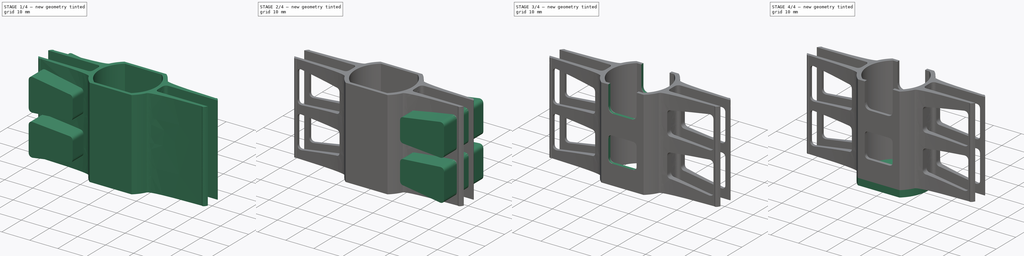
[diagram: build sequence overview — one tinted view per stage of 4, left to right]
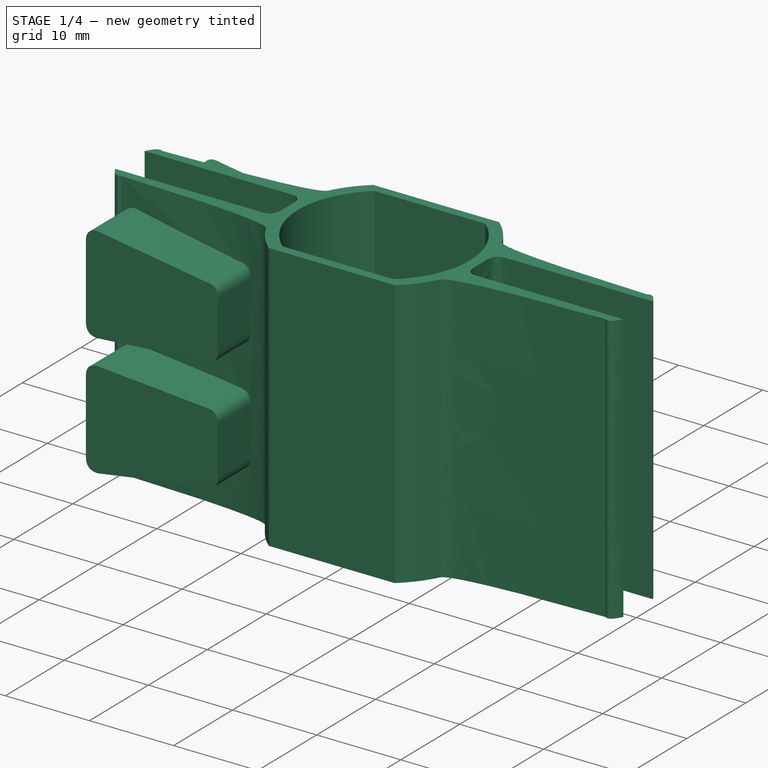
[diagram: stage 1 of 4 — iso view after this stage's code; geometry added in this stage tinted green]
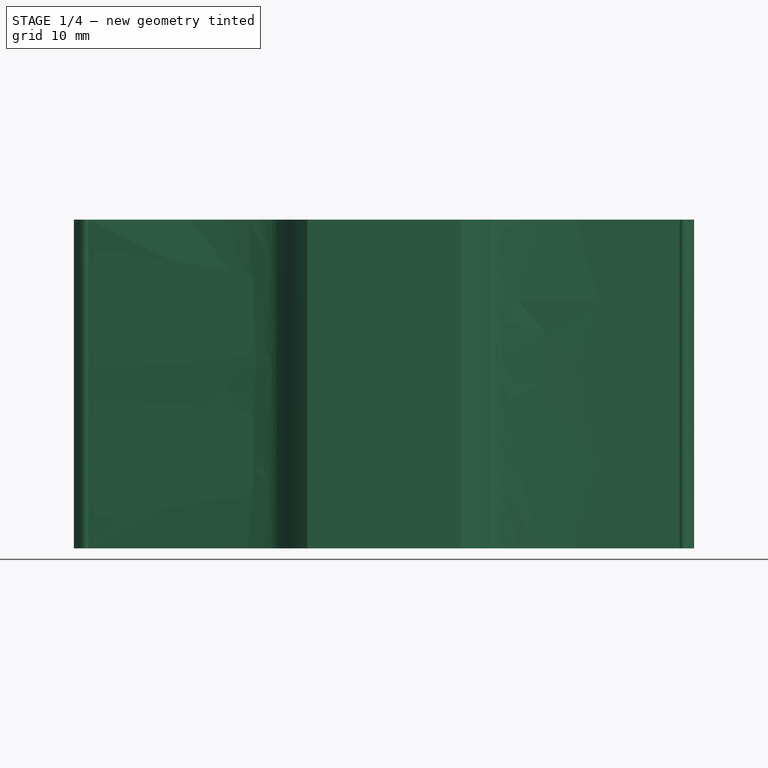
[diagram: stage 1 of 4 — front view after this stage's code; geometry added in this stage tinted green]
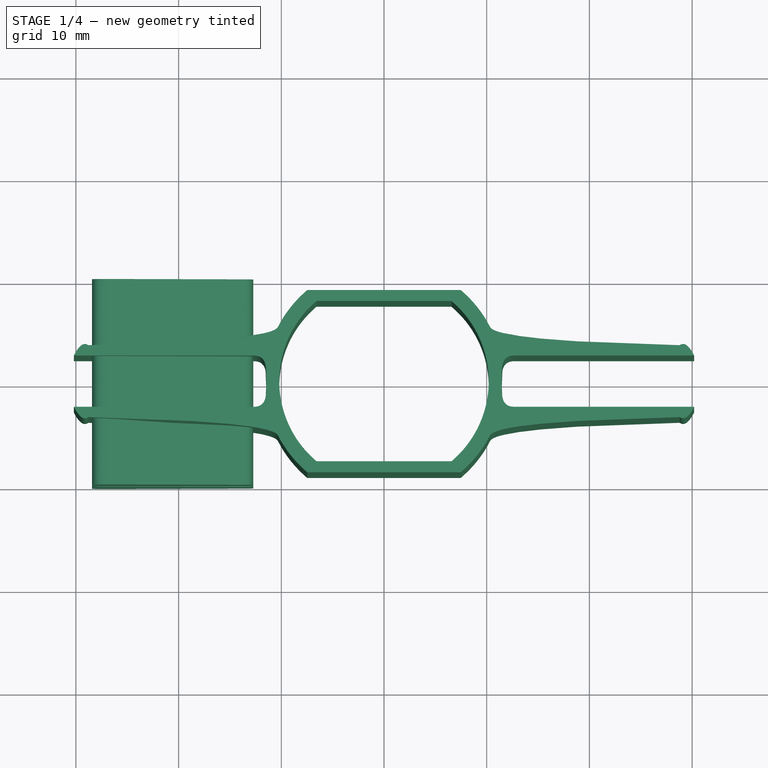
[diagram: stage 1 of 4 — top view after this stage's code; geometry added in this stage tinted green]
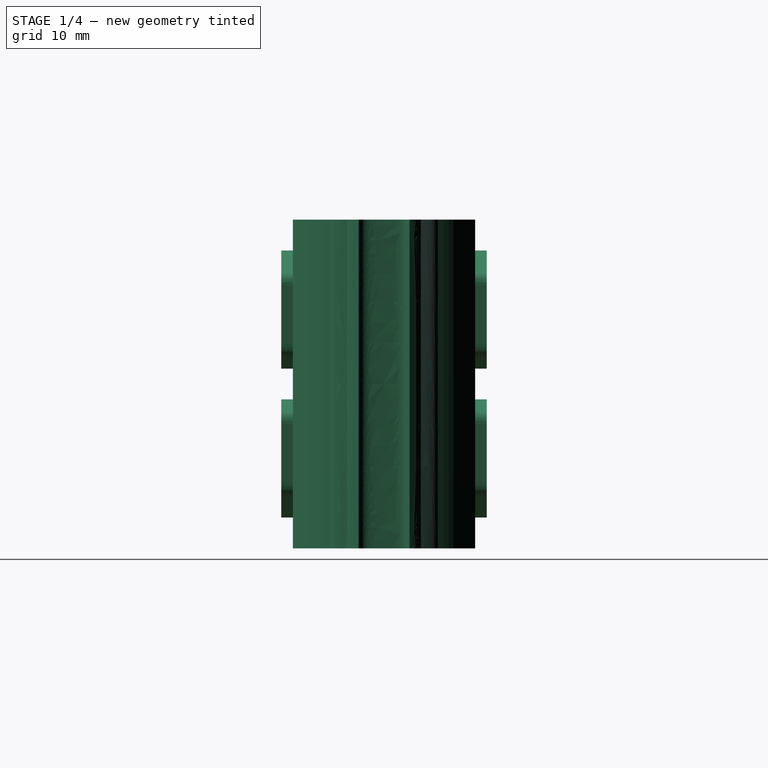
[diagram: stage 1 of 4 — right view after this stage's code; geometry added in this stage tinted green]
FCSTD DOCUMENT  (FreeCAD 0.19R0.19.2)
Label: 031
License: All rights reserved
LicenseURL: http://en.wikipedia.org/wiki/All_rights_reserved
objects: Sketcher::SketchObject×5, Part::Extrusion×5, Part::Cut×3, Part::MultiFuse×1
note: 14 computed .brp shape members not serialized (recipe doc carries the construction recipe); baked Part::Feature solids carry a one-line shape summary decoded from their .brp

FEATURE [Sketcher::SketchObject] Sketch  label="main001"
  FullyConstrained = true
  sketch-geometry (80):
    g0: ArcOfCircle CenterX=-3.45031e-07 CenterY=0 CenterZ=0 NormalX=0 NormalY=0 NormalZ=1 AngleXU=0 Radius=10.2 StartAngle=5.4126 EndAngle=7.15377
    g1: ArcOfCircle CenterX=-3.45031e-07 CenterY=0 CenterZ=0 NormalX=0 NormalY=0 NormalZ=1 AngleXU=0 Radius=10.2 StartAngle=2.27101 EndAngle=4.01218
    g2: LineSegment StartX=-6.57267 StartY=7.8 StartZ=0 EndX=6.57267 EndY=7.8 EndZ=0
    g3: LineSegment StartX=-6.57267 StartY=-7.8 StartZ=0 EndX=6.57267 EndY=-7.8 EndZ=0
    g4: ArcOfCircle CenterX=-3.45031e-07 CenterY=0 CenterZ=0 NormalX=0 NormalY=0 NormalZ=1 AngleXU=0 Radius=11.6 StartAngle=2.27101 EndAngle=2.66709
    g5: ArcOfCircle CenterX=-3.45031e-07 CenterY=0 CenterZ=0 NormalX=0 NormalY=0 NormalZ=1 AngleXU=0 Radius=11.6 StartAngle=5.4126 EndAngle=5.80868
    g6: LineSegment StartX=-7.4748 StartY=8.87059 StartZ=0 EndX=7.4748 EndY=8.87059 EndZ=0
    g7: LineSegment StartX=-7.4748 StartY=-8.87059 StartZ=0 EndX=7.4748 EndY=-8.87059 EndZ=0
    g8: ArcOfCircle CenterX=-3.45031e-07 CenterY=0 CenterZ=0 NormalX=0 NormalY=0 NormalZ=1 AngleXU=0 Radius=11.6 StartAngle=3.6161 EndAngle=4.01218
    g9: ArcOfCircle CenterX=-3.45031e-07 CenterY=0 CenterZ=0 NormalX=0 NormalY=0 NormalZ=1 AngleXU=0 Radius=11.6 StartAngle=0.474503 EndAngle=0.870585
    g10: Circle CenterX=-28.8 CenterY=3.5 CenterZ=0 NormalX=0 NormalY=0 NormalZ=1 AngleXU=0 Radius=1
    g11: Circle CenterX=-10.9247 CenterY=3.9 CenterZ=0 NormalX=0 NormalY=0 NormalZ=1 AngleXU=0 Radius=1
    g12: Circle CenterX=-10.3184 CenterY=5.3 CenterZ=0 NormalX=0 NormalY=0 NormalZ=1 AngleXU=0 Radius=1
    g13: BSplineCurve PolesCount=3 KnotsCount=2 Degree=2 IsPeriodic=0
    g14: GeomPoint X=-28.8 Y=3.5 Z=0
    g15: GeomPoint X=-10.3184 Y=5.3 Z=0
    g16: Circle CenterX=28.8 CenterY=3.5 CenterZ=0 NormalX=0 NormalY=0 NormalZ=1 AngleXU=0 Radius=1
    g17: Circle CenterX=10.9247 CenterY=3.9 CenterZ=0 NormalX=0 NormalY=0 NormalZ=1 AngleXU=0 Radius=1
    g18: Circle CenterX=10.3184 CenterY=5.3 CenterZ=0 NormalX=0 NormalY=0 NormalZ=1 AngleXU=0 Radius=1
    g19: BSplineCurve PolesCount=3 KnotsCount=2 Degree=2 IsPeriodic=0
    g20: GeomPoint X=28.8 Y=3.5 Z=0
    g21: GeomPoint X=10.3184 Y=5.3 Z=0
    g22: Circle CenterX=-28.8 CenterY=-3.5 CenterZ=0 NormalX=0 NormalY=0 NormalZ=1 AngleXU=0 Radius=1
    g23: Circle CenterX=-10.9247 CenterY=-3.9 CenterZ=0 NormalX=0 NormalY=0 NormalZ=1 AngleXU=0 Radius=1
    g24: Circle CenterX=-10.3184 CenterY=-5.3 CenterZ=0 NormalX=0 NormalY=0 NormalZ=1 AngleXU=0 Radius=1
    g25: BSplineCurve PolesCount=3 KnotsCount=2 Degree=2 IsPeriodic=0
    g26: GeomPoint X=-28.8 Y=-3.5 Z=0
    g27: GeomPoint X=-10.3184 Y=-5.3 Z=0
    g28: Circle CenterX=28.8 CenterY=-3.5 CenterZ=0 NormalX=0 NormalY=0 NormalZ=1 AngleXU=0 Radius=1
    g29: Circle CenterX=10.9247 CenterY=-3.9 CenterZ=0 NormalX=0 NormalY=0 NormalZ=1 AngleXU=0 Radius=1
    g30: Circle CenterX=10.3184 CenterY=-5.3 CenterZ=0 NormalX=0 NormalY=0 NormalZ=1 AngleXU=0 Radius=1
    g31: BSplineCurve PolesCount=3 KnotsCount=2 Degree=2 IsPeriodic=0
    g32: GeomPoint X=28.8 Y=-3.5 Z=0
    g33: GeomPoint X=10.3184 Y=-5.3 Z=0
    g34-g38: Circle x5 (B-spline internal-alignment scaffolding for g39; pole/knot coordinates omitted)
    g39: BSplineCurve PolesCount=5 KnotsCount=3 Degree=3 IsPeriodic=0
    g40: GeomPoint X=12.7274 Y=2.5 Z=0
    g41: GeomPoint X=11.4637 Y=2.49999e-07 Z=0
    g42: GeomPoint X=12.7274 Y=-2.5 Z=0
    g43-g47: Circle x5 (B-spline internal-alignment scaffolding for g48; pole/knot coordinates omitted)
    g48: BSplineCurve PolesCount=5 KnotsCount=3 Degree=3 IsPeriodic=0
    g49: GeomPoint X=-12.7274 Y=2.5 Z=0
    g50: GeomPoint X=-11.4637 Y=2.50004e-07 Z=0
    g51: GeomPoint X=-12.7274 Y=-2.5 Z=0
    g52: LineSegment StartX=-30.2 StartY=-2.5 StartZ=0 EndX=-12.7274 EndY=-2.5 EndZ=0
    g53: LineSegment StartX=-30.2 StartY=2.5 StartZ=0 EndX=-12.7274 EndY=2.5 EndZ=0
    g54: LineSegment StartX=30.2 StartY=2.5 StartZ=0 EndX=12.7274 EndY=2.5 EndZ=0
    g55: LineSegment StartX=30.2 StartY=-2.5 StartZ=0 EndX=12.7274 EndY=-2.5 EndZ=0
    g56: Circle CenterX=-30.2 CenterY=2.5 CenterZ=0 NormalX=0 NormalY=0 NormalZ=1 AngleXU=0 Radius=1
    g57: Circle CenterX=-29.4304 CenterY=3.99253 CenterZ=0 NormalX=0 NormalY=0 NormalZ=1 AngleXU=0 Radius=1
    g58: Circle CenterX=-28.8 CenterY=3.5 CenterZ=0 NormalX=0 NormalY=0 NormalZ=1 AngleXU=0 Radius=1
    g59: BSplineCurve PolesCount=3 KnotsCount=2 Degree=2 IsPeriodic=0
    g60: GeomPoint X=-30.2 Y=2.5 Z=0
    g61: GeomPoint X=-28.8 Y=3.5 Z=0
    g62: Circle CenterX=30.2 CenterY=-2.5 CenterZ=0 NormalX=0 NormalY=0 NormalZ=1 AngleXU=0 Radius=1
    g63: Circle CenterX=29.4304 CenterY=-3.99253 CenterZ=0 NormalX=0 NormalY=0 NormalZ=1 AngleXU=0 Radius=1
    g64: Circle CenterX=28.8 CenterY=-3.5 CenterZ=0 NormalX=0 NormalY=0 NormalZ=1 AngleXU=0 Radius=1
    g65: BSplineCurve PolesCount=3 KnotsCount=2 Degree=2 IsPeriodic=0
    g66: GeomPoint X=30.2 Y=-2.5 Z=0
    g67: GeomPoint X=28.8 Y=-3.5 Z=0
    g68: Circle CenterX=30.2 CenterY=2.5 CenterZ=0 NormalX=0 NormalY=0 NormalZ=1 AngleXU=0 Radius=1
    g69: Circle CenterX=29.4304 CenterY=3.99253 CenterZ=0 NormalX=0 NormalY=0 NormalZ=1 AngleXU=0 Radius=1
    g70: Circle CenterX=28.8 CenterY=3.5 CenterZ=0 NormalX=0 NormalY=0 NormalZ=1 AngleXU=0 Radius=1
    g71: BSplineCurve PolesCount=3 KnotsCount=2 Degree=2 IsPeriodic=0
    g72: GeomPoint X=30.2 Y=2.5 Z=0
    g73: GeomPoint X=28.8 Y=3.5 Z=0
    g74: Circle CenterX=-30.2 CenterY=-2.5 CenterZ=0 NormalX=0 NormalY=0 NormalZ=1 AngleXU=0 Radius=1
    g75: Circle CenterX=-29.4304 CenterY=-3.99253 CenterZ=0 NormalX=0 NormalY=0 NormalZ=1 AngleXU=0 Radius=1
    g76: Circle CenterX=-28.8 CenterY=-3.5 CenterZ=0 NormalX=0 NormalY=0 NormalZ=1 AngleXU=0 Radius=1
    g77: BSplineCurve PolesCount=3 KnotsCount=2 Degree=2 IsPeriodic=0
    g78: GeomPoint X=-30.2 Y=-2.5 Z=0
    g79: GeomPoint X=-28.8 Y=-3.5 Z=0
  constraints (131):
    c: Block(g0)
    c: Equal(g0,g1)
    c: Coincident(g0,g1)
    c: Coincident(g2,g1)
    c: Coincident(g2,g0)
    c: Horizontal(g2)
    c: Coincident(g3,g1)
    c: Coincident(g3,g0)
    c: Horizontal(g3)
    c: Block(g2)
    c: Block(g3)
    c: Coincident(g4,g0)
    c: Coincident(g5,g0)
    c: Block(g5)
    c: Block(g4)
    c: Coincident(g6,g4)
    c: Coincident(g6,g9)
    c: Horizontal(g6)
    c: Coincident(g7,g8)
    c: Coincident(g7,g5)
    c: Horizontal(g7)
    c: Equal(g4,g8)
    c: Coincident(g4,g8)
    c: Equal(g5,g9)
    c: Coincident(g5,g9)
    c: Block(g8)
    c: Block(g9)
    c: Weight(g10) = 1
    c: Equal(g10,g11)
    c: Equal(g10,g12)
    c: Coincident(g13,g4)
    c: InternalAlignment(g10,g13)
    c: InternalAlignment(g11,g13)
    c: InternalAlignment(g12,g13)
    c: InternalAlignment(g14,g13)
    c: InternalAlignment(g15,g13)
    c: Weight(g16) = 1
    c: Equal(g16,g17)
    c: Equal(g16,g18)
    c: Coincident(g19,g9)
    c: InternalAlignment(g16,g19)
    c: InternalAlignment(g17,g19)
    c: InternalAlignment(g18,g19)
    c: InternalAlignment(g20,g19)
    c: InternalAlignment(g21,g19)
    c: Weight(g22) = 1
    c: Equal(g22,g23)
    c: Equal(g22,g24)
    c: Coincident(g25,g8)
    c: InternalAlignment(g22,g25)
    c: InternalAlignment(g23,g25)
    c: InternalAlignment(g24,g25)
    c: InternalAlignment(g26,g25)
    c: InternalAlignment(g27,g25)
    c: Weight(g28) = 1
    c: Equal(g28,g29)
    c: Equal(g28,g30)
    c: Coincident(g31,g5)
    c: InternalAlignment(g28,g31)
    c: InternalAlignment(g29,g31)
    c: InternalAlignment(g30,g31)
    c: InternalAlignment(g32,g31)
    c: InternalAlignment(g33,g31)
    c: Block(g19)
    c: Block(g13)
    c: Block(g31)
    c: Block(g25)
    c: Weight(g34) = 1
    c: Equal(g34, g35-g38) x4
    c: InternalAlignment(g34-g38 -> g39) x5
    c: InternalAlignment(g40,g39)
    c: InternalAlignment(g41,g39)
    c: InternalAlignment(g42,g39)
    c: Weight(g43) = 1
    c: Equal(g43,g44)
    c: Equal(g43,g45)
    c: Equal(g43,g46)
    c: InternalAlignment(g43-g47 -> g48) x5
    c: InternalAlignment(g49,g48)
    c: InternalAlignment(g50,g48)
    c: InternalAlignment(g51,g48)
    c: Block(g48)
    c: Block(g39)
    c: Coincident(g52,g48)
    c: Tangent(g52,g22)
    c: Coincident(g53,g48)
    c: Tangent(g53,g10)
    c: Coincident(g54,g39)
    c: Tangent(g54,g16)
    c: Coincident(g55,g39)
    c: Tangent(g55,g28)
    c: Weight(g56) = 1
    c: Equal(g56,g57)
    c: Equal(g56,g58)
    c: InternalAlignment(g56,g59)
    c: InternalAlignment(g57,g59)
    c: InternalAlignment(g58,g59)
    c: InternalAlignment(g60,g59)
    c: InternalAlignment(g61,g59)
    c: Weight(g62) = 1
    c: Equal(g62,g63)
    c: Equal(g62,g64)
    c: InternalAlignment(g62,g65)
    c: InternalAlignment(g63,g65)
    c: InternalAlignment(g64,g65)
    c: InternalAlignment(g66,g65)
    c: InternalAlignment(g67,g65)
    c: Weight(g68) = 1
    c: Equal(g68,g69)
    c: Equal(g68,g70)
    c: InternalAlignment(g68,g71)
    c: InternalAlignment(g69,g71)
    c: InternalAlignment(g70,g71)
    c: InternalAlignment(g72,g71)
    c: InternalAlignment(g73,g71)
    c: Block(g71)
    c: Block(g54)
    c: Block(g65)
    c: Block(g55)
    c: Weight(g74) = 1
    c: Equal(g74,g75)
    c: Equal(g74,g76)
    c: InternalAlignment(g74,g77)
    c: InternalAlignment(g75,g77)
    c: InternalAlignment(g76,g77)
    c: InternalAlignment(g78,g77)
    c: InternalAlignment(g79,g77)
    c: Block(g77)
    c: Block(g52)
    c: Block(g59)
    c: Block(g53)
FEATURE [Part::Extrusion] Extrude  label="main"
  Base = -> Sketch
  Dir = (0,0,1)
  DirMode = 2
  FaceMakerClass = Part::FaceMakerBullseye
  LengthFwd = 32
  LengthRev = 0
  Solid = true
  Symmetric = false
FEATURE [Sketcher::SketchObject] Sketch002  label="structuralHoles"
  FullyConstrained = true
  Placement = pos=(0,0,0) rot=(-1,0,0;4.71239rad)
  sketch-geometry (55):
    g0: LineSegment StartX=-28.43 StartY=13.1 StartZ=0 EndX=-28.43 EndY=4.4 EndZ=0
    g1: LineSegment StartX=-28.43 StartY=27.6 StartZ=0 EndX=-28.43 EndY=18.9 EndZ=0
    g2: LineSegment StartX=-12.73 StartY=25.6 StartZ=0 EndX=-12.73 EndY=19.9 EndZ=0
    g3: LineSegment StartX=-12.73 StartY=12.1 StartZ=0 EndX=-12.73 EndY=6.4 EndZ=0
    g4: Circle CenterX=-28.43 CenterY=27.6 CenterZ=0 NormalX=0 NormalY=0 NormalZ=1 AngleXU=0 Radius=1
    g5: Circle CenterX=-28.43 CenterY=29 CenterZ=0 NormalX=0 NormalY=0 NormalZ=1 AngleXU=0 Radius=1
    g6: Circle CenterX=-27.03 CenterY=29 CenterZ=0 NormalX=0 NormalY=0 NormalZ=1 AngleXU=0 Radius=1
    g7: BSplineCurve PolesCount=3 KnotsCount=2 Degree=2 IsPeriodic=0
    g8: GeomPoint X=-28.43 Y=27.6 Z=0
    g9: GeomPoint X=-27.03 Y=29 Z=0
    g10: Circle CenterX=-14.13 CenterY=27 CenterZ=0 NormalX=0 NormalY=0 NormalZ=1 AngleXU=0 Radius=1
    g11: Circle CenterX=-12.73 CenterY=27 CenterZ=0 NormalX=0 NormalY=0 NormalZ=1 AngleXU=0 Radius=1
    g12: Circle CenterX=-12.73 CenterY=25.6 CenterZ=0 NormalX=0 NormalY=0 NormalZ=1 AngleXU=0 Radius=1
    g13: BSplineCurve PolesCount=3 KnotsCount=2 Degree=2 IsPeriodic=0
    g14: GeomPoint X=-14.13 Y=27 Z=0
    g15: GeomPoint X=-12.73 Y=25.6 Z=0
    g16: Circle CenterX=-14.13 CenterY=18.5 CenterZ=0 NormalX=0 NormalY=0 NormalZ=1 AngleXU=0 Radius=1
    g17: Circle CenterX=-12.73 CenterY=18.5 CenterZ=0 NormalX=0 NormalY=0 NormalZ=1 AngleXU=0 Radius=1
    g18: Circle CenterX=-12.73 CenterY=19.9 CenterZ=0 NormalX=0 NormalY=0 NormalZ=1 AngleXU=0 Radius=1
    g19: BSplineCurve PolesCount=3 KnotsCount=2 Degree=2 IsPeriodic=0
    g20: GeomPoint X=-14.13 Y=18.5 Z=0
    g21: GeomPoint X=-12.73 Y=19.9 Z=0
    g22: Circle CenterX=-27.03 CenterY=17.5 CenterZ=0 NormalX=0 NormalY=0 NormalZ=1 AngleXU=0 Radius=1
    g23: Circle CenterX=-28.43 CenterY=17.5 CenterZ=0 NormalX=0 NormalY=0 NormalZ=1 AngleXU=0 Radius=1
    g24: Circle CenterX=-28.43 CenterY=18.9 CenterZ=0 NormalX=0 NormalY=0 NormalZ=1 AngleXU=0 Radius=1
    g25: BSplineCurve PolesCount=3 KnotsCount=2 Degree=2 IsPeriodic=0
    g26: GeomPoint X=-27.03 Y=17.5 Z=0
    g27: GeomPoint X=-28.43 Y=18.9 Z=0
    g28: Circle CenterX=-27.03 CenterY=14.5 CenterZ=0 NormalX=0 NormalY=0 NormalZ=1 AngleXU=0 Radius=1
    g29: Circle CenterX=-28.43 CenterY=14.5 CenterZ=0 NormalX=0 NormalY=0 NormalZ=1 AngleXU=0 Radius=1
    g30: Circle CenterX=-28.43 CenterY=13.1 CenterZ=0 NormalX=0 NormalY=0 NormalZ=1 AngleXU=0 Radius=1
    g31: BSplineCurve PolesCount=3 KnotsCount=2 Degree=2 IsPeriodic=0
    g32: GeomPoint X=-27.03 Y=14.5 Z=0
    g33: GeomPoint X=-28.43 Y=13.1 Z=0
    g34: Circle CenterX=-14.13 CenterY=13.5 CenterZ=0 NormalX=0 NormalY=0 NormalZ=1 AngleXU=0 Radius=1
    g35: Circle CenterX=-12.73 CenterY=13.5 CenterZ=0 NormalX=0 NormalY=0 NormalZ=1 AngleXU=0 Radius=1
    g36: Circle CenterX=-12.73 CenterY=12.1 CenterZ=0 NormalX=0 NormalY=0 NormalZ=1 AngleXU=0 Radius=1
    g37: BSplineCurve PolesCount=3 KnotsCount=2 Degree=2 IsPeriodic=0
    g38: GeomPoint X=-14.13 Y=13.5 Z=0
    g39: GeomPoint X=-12.73 Y=12.1 Z=0
    g40: Circle CenterX=-27.03 CenterY=3 CenterZ=0 NormalX=0 NormalY=0 NormalZ=1 AngleXU=0 Radius=1
    g41: Circle CenterX=-28.43 CenterY=3 CenterZ=0 NormalX=0 NormalY=0 NormalZ=1 AngleXU=0 Radius=1
    g42: Circle CenterX=-28.43 CenterY=4.4 CenterZ=0 NormalX=0 NormalY=0 NormalZ=1 AngleXU=0 Radius=1
    g43: BSplineCurve PolesCount=3 KnotsCount=2 Degree=2 IsPeriodic=0
    g44: GeomPoint X=-28.43 Y=4.4 Z=0
    g45: Circle CenterX=-14.13 CenterY=5 CenterZ=0 NormalX=0 NormalY=0 NormalZ=1 AngleXU=0 Radius=1
    g46: Circle CenterX=-12.73 CenterY=5 CenterZ=0 NormalX=0 NormalY=0 NormalZ=1 AngleXU=0 Radius=1
    g47: Circle CenterX=-12.73 CenterY=6.4 CenterZ=0 NormalX=0 NormalY=0 NormalZ=1 AngleXU=0 Radius=1
    g48: BSplineCurve PolesCount=3 KnotsCount=2 Degree=2 IsPeriodic=0
    g49: GeomPoint X=-14.13 Y=5 Z=0
    g50: GeomPoint X=-12.73 Y=6.4 Z=0
    g51: LineSegment StartX=-27.03 StartY=3 StartZ=0 EndX=-14.13 EndY=5 EndZ=0
    g52: LineSegment StartX=-27.03 StartY=14.5 StartZ=0 EndX=-14.13 EndY=13.5 EndZ=0
    g53: LineSegment StartX=-27.03 StartY=17.5 StartZ=0 EndX=-14.13 EndY=18.5 EndZ=0
    g54: LineSegment StartX=-27.03 StartY=29 StartZ=0 EndX=-14.13 EndY=27 EndZ=0
  constraints (91):
    c: Distance(g0) = 8.7
    c: Vertical(g0)
    c: Equal(g0,g1) = 8.7
    c: Vertical(g1)
    c: Vertical(g2)
    c: Distance(g2) = 5.7
    c: Vertical(g3)
    c: Equal(g2,g3) = 7.1
    c: Weight(g4) = 1
    c: Equal(g4,g5)
    c: Equal(g4,g6)
    c: InternalAlignment(g4,g7)
    c: InternalAlignment(g5,g7)
    c: InternalAlignment(g6,g7)
    c: InternalAlignment(g8,g7)
    c: InternalAlignment(g9,g7)
    c: Weight(g10) = 1
    c: Equal(g10,g11)
    c: Equal(g10,g12)
    c: InternalAlignment(g10,g13)
    c: InternalAlignment(g11,g13)
    c: InternalAlignment(g12,g13)
    c: InternalAlignment(g14,g13)
    c: InternalAlignment(g15,g13)
    c: Weight(g16) = 1
    c: Equal(g16,g17)
    c: Equal(g16,g18)
    c: Coincident(g19,g2)
    c: InternalAlignment(g16,g19)
    c: InternalAlignment(g17,g19)
    c: InternalAlignment(g18,g19)
    c: InternalAlignment(g20,g19)
    c: InternalAlignment(g21,g19)
    c: Weight(g22) = 1
    c: Equal(g22,g23)
    c: Equal(g22,g24)
    c: Coincident(g25,g1)
    c: InternalAlignment(g22,g25)
    c: InternalAlignment(g23,g25)
    c: InternalAlignment(g24,g25)
    c: InternalAlignment(g26,g25)
    c: InternalAlignment(g27,g25)
    c: Weight(g28) = 1
    c: Equal(g28,g29)
    c: Equal(g28,g30)
    c: Coincident(g31,g0)
    c: InternalAlignment(g28,g31)
    c: InternalAlignment(g29,g31)
    c: InternalAlignment(g30,g31)
    c: InternalAlignment(g32,g31)
    c: InternalAlignment(g33,g31)
    c: Weight(g34) = 1
    c: Equal(g34,g35)
    c: Equal(g34,g36)
    c: Coincident(g37,g3)
    c: InternalAlignment(g34,g37)
    c: InternalAlignment(g35,g37)
    c: InternalAlignment(g36,g37)
    c: InternalAlignment(g38,g37)
    c: InternalAlignment(g39,g37)
    c: Weight(g40) = 1
    c: Equal(g40,g41)
    c: Equal(g40,g42)
    c: InternalAlignment(g40,g43)
    c: InternalAlignment(g41,g43)
    c: InternalAlignment(g42,g43)
    c: InternalAlignment(g44,g43)
    c: Weight(g45) = 1
    c: Equal(g45,g46)
    c: Equal(g45,g47)
    c: InternalAlignment(g45,g48)
    c: InternalAlignment(g46,g48)
    c: InternalAlignment(g47,g48)
    c: InternalAlignment(g49,g48)
    c: InternalAlignment(g50,g48)
    c: Block(g54)
    c: Block(g53)
    c: Block(g52)
    c: Block(g51)
    c: Block(g43)
    c: Block(g2)
    c: Block(g19)
    c: Block(g13)
    c: Block(g7)
    c: Block(g1)
    c: Block(g25)
    c: Block(g3)
    c: Block(g37)
    c: Block(g48)
    c: Block(g0)
    c: Block(g31)
FEATURE [Part::Extrusion] Extrude002  label="structuralHolesLeft"
  Base = -> Sketch002
  Dir = (0,-1,3e-16)
  DirMode = 2
  FaceMakerClass = Part::FaceMakerBullseye
  LengthFwd = 20
  LengthRev = 0
  Placement = pos=(0,10,0) rot=(0,0,1;0rad)
  Solid = true
  Symmetric = false
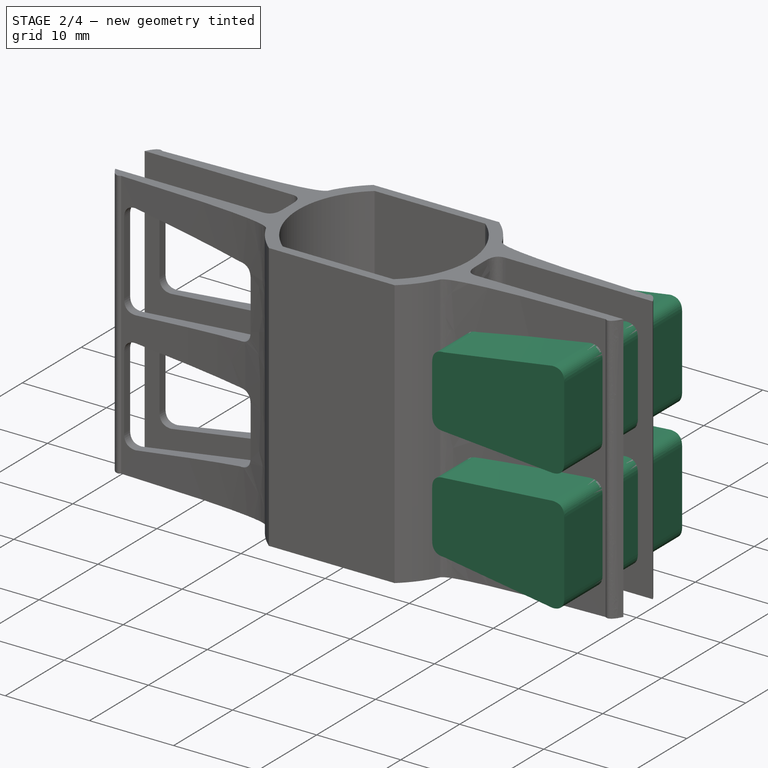
[diagram: stage 2 of 4 — iso view after this stage's code; geometry added in this stage tinted green]
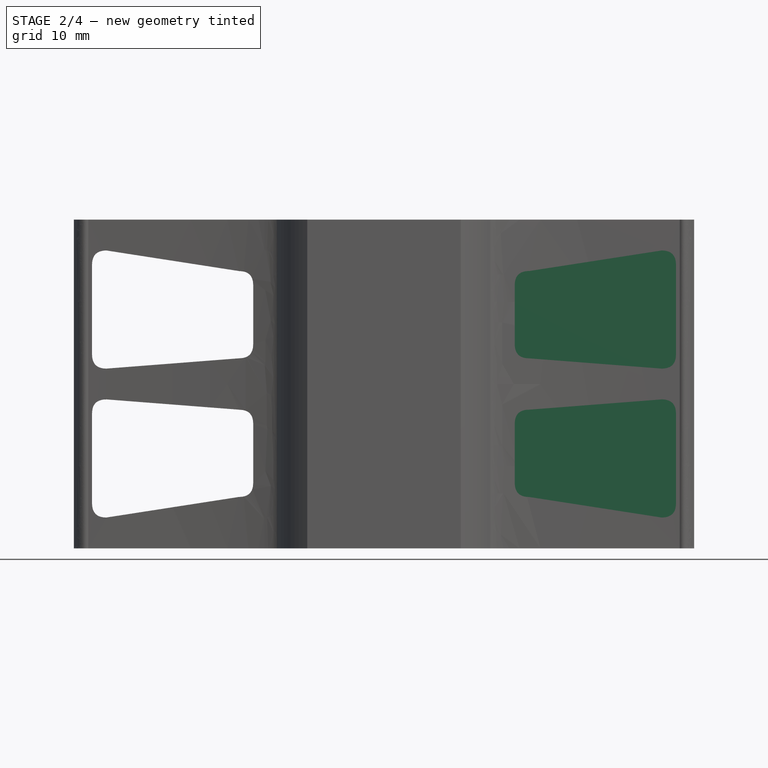
[diagram: stage 2 of 4 — front view after this stage's code; geometry added in this stage tinted green]
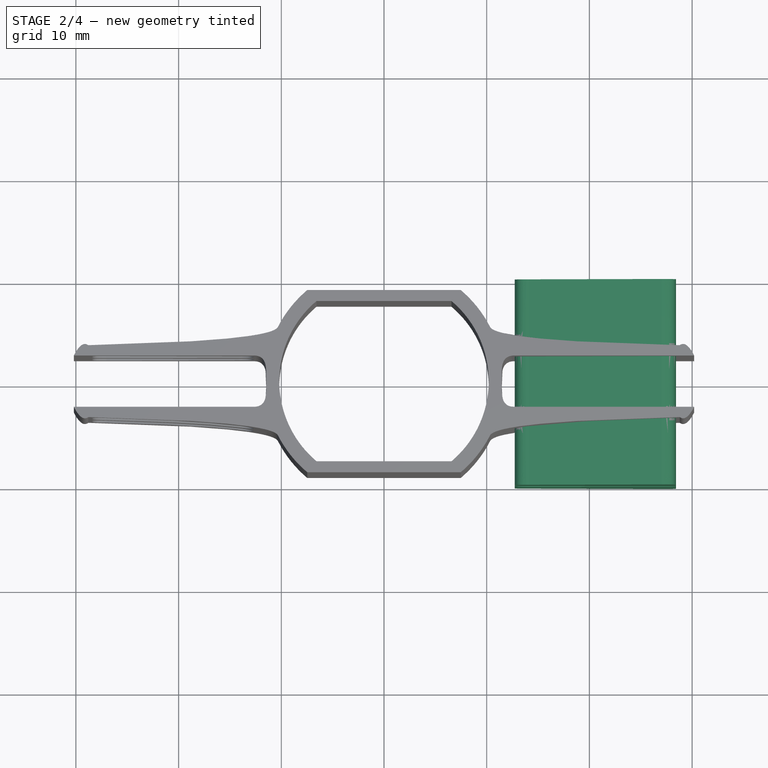
[diagram: stage 2 of 4 — top view after this stage's code; geometry added in this stage tinted green]
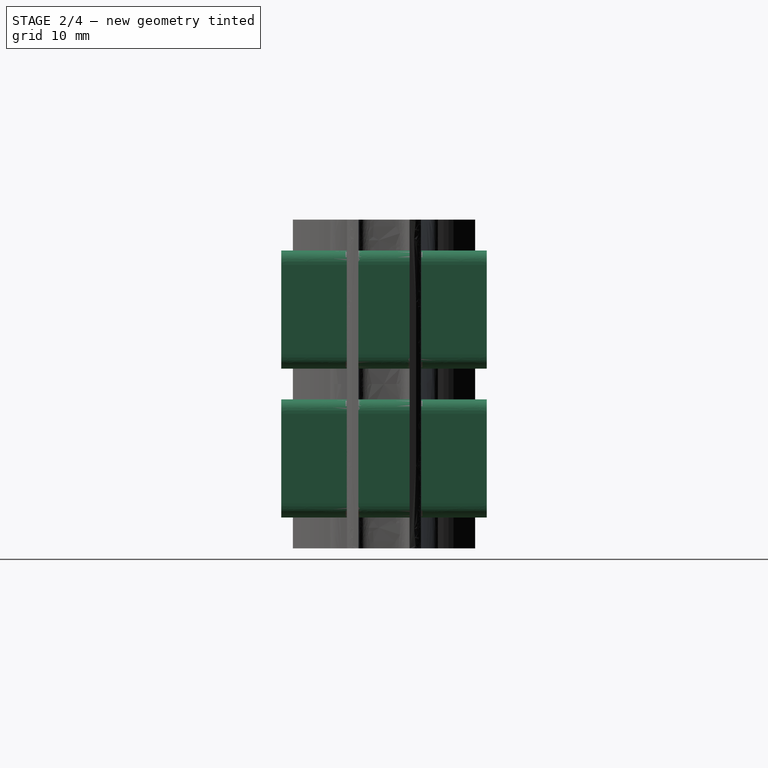
[diagram: stage 2 of 4 — right view after this stage's code; geometry added in this stage tinted green]
FEATURE [Sketcher::SketchObject] Sketch003  label="structuralHoles002"
  FullyConstrained = true
  Placement = pos=(0,0,0) rot=(1,0,0;1.5708rad)
  sketch-geometry (55):
    g0: LineSegment StartX=-28.43 StartY=13.1 StartZ=0 EndX=-28.43 EndY=4.4 EndZ=0
    g1: LineSegment StartX=-28.43 StartY=27.6 StartZ=0 EndX=-28.43 EndY=18.9 EndZ=0
    g2: LineSegment StartX=-12.73 StartY=25.6 StartZ=0 EndX=-12.73 EndY=19.9 EndZ=0
    g3: LineSegment StartX=-12.73 StartY=12.1 StartZ=0 EndX=-12.73 EndY=6.4 EndZ=0
    g4: Circle CenterX=-28.43 CenterY=27.6 CenterZ=0 NormalX=0 NormalY=0 NormalZ=1 AngleXU=0 Radius=1
    g5: Circle CenterX=-28.43 CenterY=29 CenterZ=0 NormalX=0 NormalY=0 NormalZ=1 AngleXU=0 Radius=1
    g6: Circle CenterX=-27.03 CenterY=29 CenterZ=0 NormalX=0 NormalY=0 NormalZ=1 AngleXU=0 Radius=1
    g7: BSplineCurve PolesCount=3 KnotsCount=2 Degree=2 IsPeriodic=0
    g8: GeomPoint X=-28.43 Y=27.6 Z=0
    g9: GeomPoint X=-27.03 Y=29 Z=0
    g10: Circle CenterX=-14.13 CenterY=27 CenterZ=0 NormalX=0 NormalY=0 NormalZ=1 AngleXU=0 Radius=1
    g11: Circle CenterX=-12.73 CenterY=27 CenterZ=0 NormalX=0 NormalY=0 NormalZ=1 AngleXU=0 Radius=1
    g12: Circle CenterX=-12.73 CenterY=25.6 CenterZ=0 NormalX=0 NormalY=0 NormalZ=1 AngleXU=0 Radius=1
    g13: BSplineCurve PolesCount=3 KnotsCount=2 Degree=2 IsPeriodic=0
    g14: GeomPoint X=-14.13 Y=27 Z=0
    g15: GeomPoint X=-12.73 Y=25.6 Z=0
    g16: Circle CenterX=-14.13 CenterY=18.5 CenterZ=0 NormalX=0 NormalY=0 NormalZ=1 AngleXU=0 Radius=1
    g17: Circle CenterX=-12.73 CenterY=18.5 CenterZ=0 NormalX=0 NormalY=0 NormalZ=1 AngleXU=0 Radius=1
    g18: Circle CenterX=-12.73 CenterY=19.9 CenterZ=0 NormalX=0 NormalY=0 NormalZ=1 AngleXU=0 Radius=1
    g19: BSplineCurve PolesCount=3 KnotsCount=2 Degree=2 IsPeriodic=0
    g20: GeomPoint X=-14.13 Y=18.5 Z=0
    g21: GeomPoint X=-12.73 Y=19.9 Z=0
    g22: Circle CenterX=-27.03 CenterY=17.5 CenterZ=0 NormalX=0 NormalY=0 NormalZ=1 AngleXU=0 Radius=1
    g23: Circle CenterX=-28.43 CenterY=17.5 CenterZ=0 NormalX=0 NormalY=0 NormalZ=1 AngleXU=0 Radius=1
    g24: Circle CenterX=-28.43 CenterY=18.9 CenterZ=0 NormalX=0 NormalY=0 NormalZ=1 AngleXU=0 Radius=1
    g25: BSplineCurve PolesCount=3 KnotsCount=2 Degree=2 IsPeriodic=0
    g26: GeomPoint X=-27.03 Y=17.5 Z=0
    g27: GeomPoint X=-28.43 Y=18.9 Z=0
    g28: Circle CenterX=-27.03 CenterY=14.5 CenterZ=0 NormalX=0 NormalY=0 NormalZ=1 AngleXU=0 Radius=1
    g29: Circle CenterX=-28.43 CenterY=14.5 CenterZ=0 NormalX=0 NormalY=0 NormalZ=1 AngleXU=0 Radius=1
    g30: Circle CenterX=-28.43 CenterY=13.1 CenterZ=0 NormalX=0 NormalY=0 NormalZ=1 AngleXU=0 Radius=1
    g31: BSplineCurve PolesCount=3 KnotsCount=2 Degree=2 IsPeriodic=0
    g32: GeomPoint X=-27.03 Y=14.5 Z=0
    g33: GeomPoint X=-28.43 Y=13.1 Z=0
    g34: Circle CenterX=-14.13 CenterY=13.5 CenterZ=0 NormalX=0 NormalY=0 NormalZ=1 AngleXU=0 Radius=1
    g35: Circle CenterX=-12.73 CenterY=13.5 CenterZ=0 NormalX=0 NormalY=0 NormalZ=1 AngleXU=0 Radius=1
    g36: Circle CenterX=-12.73 CenterY=12.1 CenterZ=0 NormalX=0 NormalY=0 NormalZ=1 AngleXU=0 Radius=1
    g37: BSplineCurve PolesCount=3 KnotsCount=2 Degree=2 IsPeriodic=0
    g38: GeomPoint X=-14.13 Y=13.5 Z=0
    g39: GeomPoint X=-12.73 Y=12.1 Z=0
    g40: Circle CenterX=-27.03 CenterY=3 CenterZ=0 NormalX=0 NormalY=0 NormalZ=1 AngleXU=0 Radius=1
    g41: Circle CenterX=-28.43 CenterY=3 CenterZ=0 NormalX=0 NormalY=0 NormalZ=1 AngleXU=0 Radius=1
    g42: Circle CenterX=-28.43 CenterY=4.4 CenterZ=0 NormalX=0 NormalY=0 NormalZ=1 AngleXU=0 Radius=1
    g43: BSplineCurve PolesCount=3 KnotsCount=2 Degree=2 IsPeriodic=0
    g44: GeomPoint X=-28.43 Y=4.4 Z=0
    g45: Circle CenterX=-14.13 CenterY=5 CenterZ=0 NormalX=0 NormalY=0 NormalZ=1 AngleXU=0 Radius=1
    g46: Circle CenterX=-12.73 CenterY=5 CenterZ=0 NormalX=0 NormalY=0 NormalZ=1 AngleXU=0 Radius=1
    g47: Circle CenterX=-12.73 CenterY=6.4 CenterZ=0 NormalX=0 NormalY=0 NormalZ=1 AngleXU=0 Radius=1
    g48: BSplineCurve PolesCount=3 KnotsCount=2 Degree=2 IsPeriodic=0
    g49: GeomPoint X=-14.13 Y=5 Z=0
    g50: GeomPoint X=-12.73 Y=6.4 Z=0
    g51: LineSegment StartX=-27.03 StartY=3 StartZ=0 EndX=-14.13 EndY=5 EndZ=0
    g52: LineSegment StartX=-27.03 StartY=14.5 StartZ=0 EndX=-14.13 EndY=13.5 EndZ=0
    g53: LineSegment StartX=-27.03 StartY=17.5 StartZ=0 EndX=-14.13 EndY=18.5 EndZ=0
    g54: LineSegment StartX=-27.03 StartY=29 StartZ=0 EndX=-14.13 EndY=27 EndZ=0
  constraints (91):
    c: Distance(g0) = 8.7
    c: Vertical(g0)
    c: Equal(g0,g1) = 8.7
    c: Vertical(g1)
    c: Vertical(g2)
    c: Distance(g2) = 5.7
    c: Vertical(g3)
    c: Equal(g2,g3) = 7.1
    c: Weight(g4) = 1
    c: Equal(g4,g5)
    c: Equal(g4,g6)
    c: InternalAlignment(g4,g7)
    c: InternalAlignment(g5,g7)
    c: InternalAlignment(g6,g7)
    c: InternalAlignment(g8,g7)
    c: InternalAlignment(g9,g7)
    c: Weight(g10) = 1
    c: Equal(g10,g11)
    c: Equal(g10,g12)
    c: InternalAlignment(g10,g13)
    c: InternalAlignment(g11,g13)
    c: InternalAlignment(g12,g13)
    c: InternalAlignment(g14,g13)
    c: InternalAlignment(g15,g13)
    c: Weight(g16) = 1
    c: Equal(g16,g17)
    c: Equal(g16,g18)
    c: Coincident(g19,g2)
    c: InternalAlignment(g16,g19)
    c: InternalAlignment(g17,g19)
    c: InternalAlignment(g18,g19)
    c: InternalAlignment(g20,g19)
    c: InternalAlignment(g21,g19)
    c: Weight(g22) = 1
    c: Equal(g22,g23)
    c: Equal(g22,g24)
    c: Coincident(g25,g1)
    c: InternalAlignment(g22,g25)
    c: InternalAlignment(g23,g25)
    c: InternalAlignment(g24,g25)
    c: InternalAlignment(g26,g25)
    c: InternalAlignment(g27,g25)
    c: Weight(g28) = 1
    c: Equal(g28,g29)
    c: Equal(g28,g30)
    c: Coincident(g31,g0)
    c: InternalAlignment(g28,g31)
    c: InternalAlignment(g29,g31)
    c: InternalAlignment(g30,g31)
    c: InternalAlignment(g32,g31)
    c: InternalAlignment(g33,g31)
    c: Weight(g34) = 1
    c: Equal(g34,g35)
    c: Equal(g34,g36)
    c: Coincident(g37,g3)
    c: InternalAlignment(g34,g37)
    c: InternalAlignment(g35,g37)
    c: InternalAlignment(g36,g37)
    c: InternalAlignment(g38,g37)
    c: InternalAlignment(g39,g37)
    c: Weight(g40) = 1
    c: Equal(g40,g41)
    c: Equal(g40,g42)
    c: InternalAlignment(g40,g43)
    c: InternalAlignment(g41,g43)
    c: InternalAlignment(g42,g43)
    c: InternalAlignment(g44,g43)
    c: Weight(g45) = 1
    c: Equal(g45,g46)
    c: Equal(g45,g47)
    c: InternalAlignment(g45,g48)
    c: InternalAlignment(g46,g48)
    c: InternalAlignment(g47,g48)
    c: InternalAlignment(g49,g48)
    c: InternalAlignment(g50,g48)
    c: Block(g54)
    c: Block(g53)
    c: Block(g52)
    c: Block(g51)
    c: Block(g43)
    c: Block(g2)
    c: Block(g19)
    c: Block(g13)
    c: Block(g7)
    c: Block(g1)
    c: Block(g25)
    c: Block(g3)
    c: Block(g37)
    c: Block(g48)
    c: Block(g0)
    c: Block(g31)
FEATURE [Part::Extrusion] Extrude003  label="structuralHolesRight"
  Base = -> Sketch003
  Dir = (0,-1,3e-16)
  DirMode = 2
  FaceMakerClass = Part::FaceMakerBullseye
  LengthFwd = 20
  LengthRev = 0
  Placement = pos=(0,10,32) rot=(0,1,0;3.14159rad)
  Solid = true
  Symmetric = false
FEATURE [Part::Cut] Cut  label="main002"
  Base = -> Extrude
  Tool = -> Extrude002
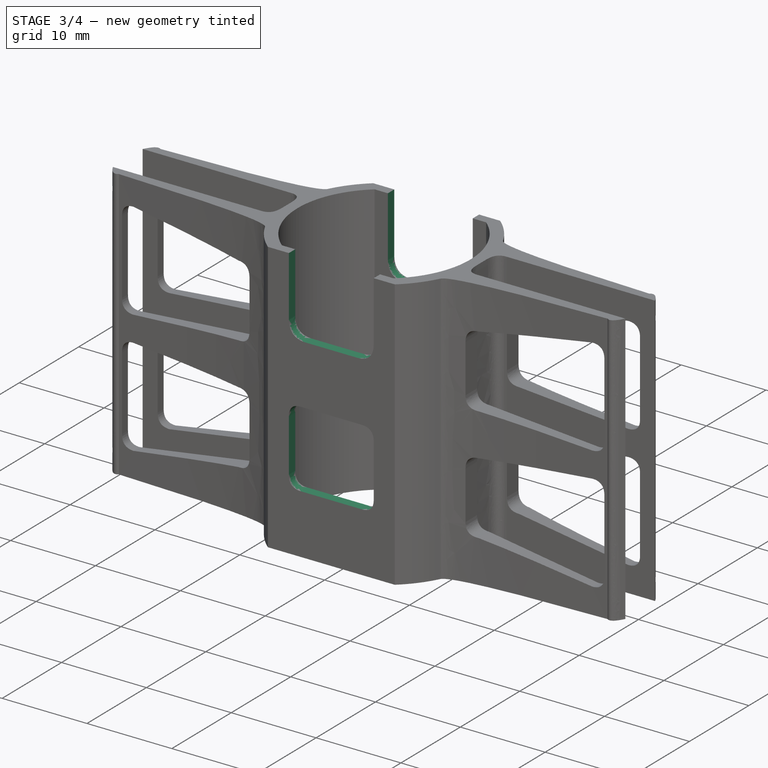
[diagram: stage 3 of 4 — iso view after this stage's code; geometry added in this stage tinted green]
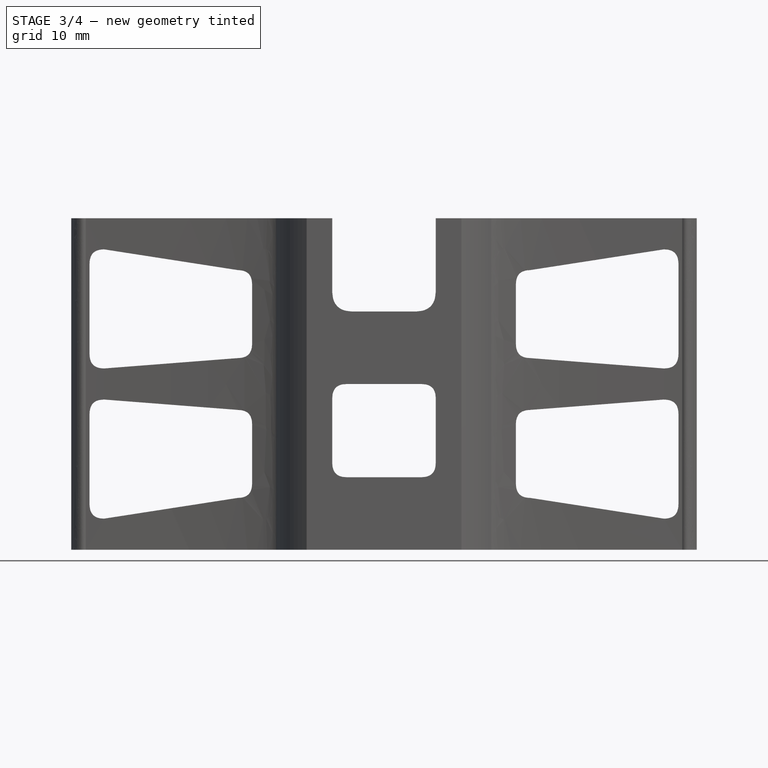
[diagram: stage 3 of 4 — front view after this stage's code; geometry added in this stage tinted green]
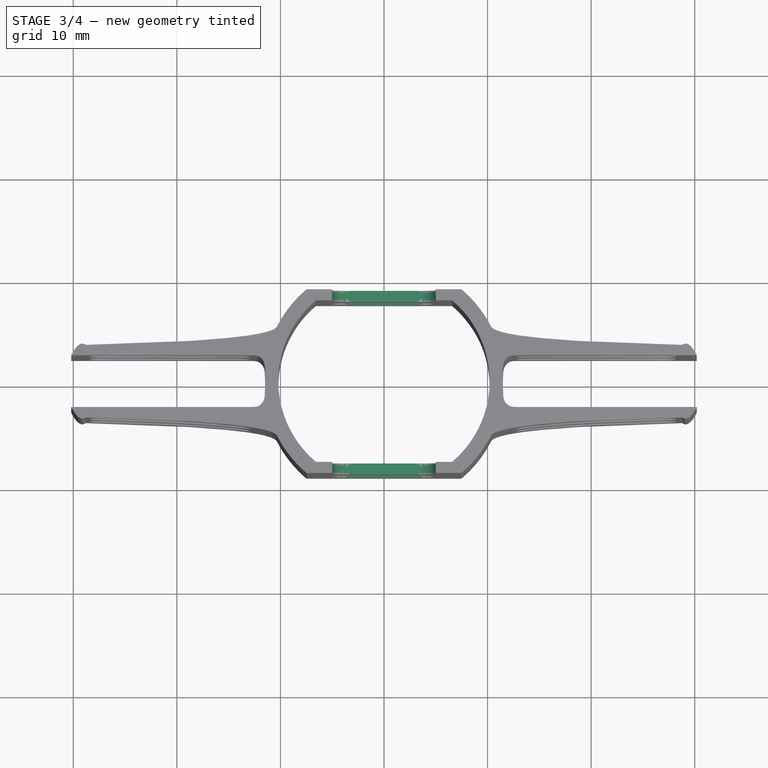
[diagram: stage 3 of 4 — top view after this stage's code; geometry added in this stage tinted green]
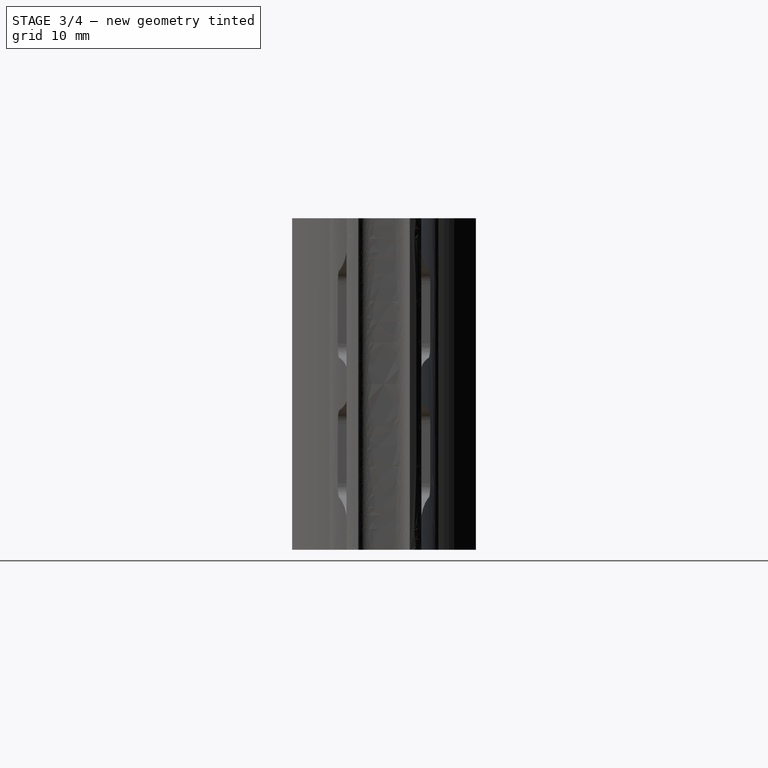
[diagram: stage 3 of 4 — right view after this stage's code; geometry added in this stage tinted green]
FEATURE [Sketcher::SketchObject] Sketch001  label="mainCollingAndStructuralHoles"
  FullyConstrained = true
  Placement = pos=(0,0,0) rot=(-1,0,0;4.71239rad)
  sketch-geometry (44):
    g0: Circle CenterX=-5 CenterY=2 CenterZ=0 NormalX=0 NormalY=0 NormalZ=1 AngleXU=0 Radius=1
    g1: Circle CenterX=-5 CenterY=0 CenterZ=0 NormalX=0 NormalY=0 NormalZ=1 AngleXU=0 Radius=1
    g2: Circle CenterX=-3 CenterY=4.6505e-12 CenterZ=0 NormalX=0 NormalY=0 NormalZ=1 AngleXU=0 Radius=1
    g3: BSplineCurve PolesCount=3 KnotsCount=2 Degree=2 IsPeriodic=0
    g4: GeomPoint X=-5 Y=2 Z=0
    g5: GeomPoint X=-3 Y=4.6505e-12 Z=0
    g6: Circle CenterX=5 CenterY=2 CenterZ=0 NormalX=0 NormalY=0 NormalZ=1 AngleXU=0 Radius=1
    g7: Circle CenterX=5 CenterY=4.6505e-12 CenterZ=0 NormalX=0 NormalY=0 NormalZ=1 AngleXU=0 Radius=1
    g8: Circle CenterX=3 CenterY=4.6505e-12 CenterZ=0 NormalX=0 NormalY=0 NormalZ=1 AngleXU=0 Radius=1
    g9: BSplineCurve PolesCount=3 KnotsCount=2 Degree=2 IsPeriodic=0
    g10: GeomPoint X=5 Y=2 Z=0
    g11: GeomPoint X=3 Y=4.6505e-12 Z=0
    g12: LineSegment StartX=5 StartY=2 StartZ=0 EndX=5 EndY=10 EndZ=0
    g13: LineSegment StartX=-5 StartY=2 StartZ=0 EndX=-5 EndY=10 EndZ=0
    g14: LineSegment StartX=-3 StartY=4.6505e-12 StartZ=0 EndX=3 EndY=4.6505e-12 EndZ=0
    g15: LineSegment StartX=-5 StartY=10 StartZ=0 EndX=5 EndY=10 EndZ=0
    g16: Circle CenterX=-3.6 CenterY=-7 CenterZ=0 NormalX=0 NormalY=0 NormalZ=1 AngleXU=0 Radius=1
    g17: Circle CenterX=-5 CenterY=-7 CenterZ=0 NormalX=0 NormalY=0 NormalZ=1 AngleXU=0 Radius=1
    g18: Circle CenterX=-5 CenterY=-8.4 CenterZ=0 NormalX=0 NormalY=0 NormalZ=1 AngleXU=0 Radius=1
    g19: BSplineCurve PolesCount=3 KnotsCount=2 Degree=2 IsPeriodic=0
    g20: GeomPoint X=-3.6 Y=-7 Z=0
    g21: GeomPoint X=-5 Y=-8.4 Z=0
    g22: Circle CenterX=5 CenterY=-8.4 CenterZ=0 NormalX=0 NormalY=0 NormalZ=1 AngleXU=0 Radius=1
    g23: Circle CenterX=5 CenterY=-7 CenterZ=0 NormalX=0 NormalY=0 NormalZ=1 AngleXU=0 Radius=1
    g24: Circle CenterX=3.6 CenterY=-7 CenterZ=0 NormalX=0 NormalY=0 NormalZ=1 AngleXU=0 Radius=1
    g25: BSplineCurve PolesCount=3 KnotsCount=2 Degree=2 IsPeriodic=0
    g26: GeomPoint X=5 Y=-8.4 Z=0
    g27: GeomPoint X=3.6 Y=-7 Z=0
    g28: Circle CenterX=-3.6 CenterY=-16 CenterZ=0 NormalX=0 NormalY=0 NormalZ=1 AngleXU=0 Radius=1
    g29: Circle CenterX=-5 CenterY=-16 CenterZ=0 NormalX=0 NormalY=0 NormalZ=1 AngleXU=0 Radius=1
    g30: Circle CenterX=-5 CenterY=-14.6 CenterZ=0 NormalX=0 NormalY=0 NormalZ=1 AngleXU=0 Radius=1
    g31: BSplineCurve PolesCount=3 KnotsCount=2 Degree=2 IsPeriodic=0
    g32: GeomPoint X=-3.6 Y=-16 Z=0
    g33: GeomPoint X=-5 Y=-14.6 Z=0
    g34: Circle CenterX=5 CenterY=-14.6 CenterZ=0 NormalX=0 NormalY=0 NormalZ=1 AngleXU=0 Radius=1
    g35: Circle CenterX=5 CenterY=-16 CenterZ=0 NormalX=0 NormalY=0 NormalZ=1 AngleXU=0 Radius=1
    g36: Circle CenterX=3.6 CenterY=-16 CenterZ=0 NormalX=0 NormalY=0 NormalZ=1 AngleXU=0 Radius=1
    g37: BSplineCurve PolesCount=3 KnotsCount=2 Degree=2 IsPeriodic=0
    g38: GeomPoint X=5 Y=-14.6 Z=0
    g39: GeomPoint X=3.6 Y=-16 Z=0
    g40: LineSegment StartX=-3.6 StartY=-7 StartZ=0 EndX=3.6 EndY=-7 EndZ=0
    g41: LineSegment StartX=-5 StartY=-8.4 StartZ=0 EndX=-5 EndY=-14.6 EndZ=0
    g42: LineSegment StartX=-3.6 StartY=-16 StartZ=0 EndX=3.6 EndY=-16 EndZ=0
    g43: LineSegment StartX=5 StartY=-14.6 StartZ=0 EndX=5 EndY=-8.4 EndZ=0
  constraints (79):
    c: Weight(g0) = 1
    c: Equal(g0,g1)
    c: Equal(g0,g2)
    c: InternalAlignment(g0,g3)
    c: InternalAlignment(g1,g3)
    c: InternalAlignment(g2,g3)
    c: InternalAlignment(g4,g3)
    c: InternalAlignment(g5,g3)
    c: Weight(g6) = 1
    c: Equal(g6,g7)
    c: Equal(g6,g8)
    c: InternalAlignment(g6,g9)
    c: InternalAlignment(g7,g9)
    c: InternalAlignment(g8,g9)
    c: InternalAlignment(g10,g9)
    c: InternalAlignment(g11,g9)
    c: Block(g3)
    c: Coincident(g13,g3)
    c: Block(g9)
    c: Coincident(g12,g9)
    c: Vertical(g12)
    c: Block(g12)
    c: Block(g13)
    c: Coincident(g14,g3)
    c: Coincident(g14,g9)
    c: Horizontal(g14)
    c: Coincident(g15,g13)
    c: Coincident(g15,g12)
    c: Horizontal(g15)
    c: Distance(g12) = 8
    c: Distance(g15) = 10
    c: Weight(g16) = 1
    c: Equal(g16,g17)
    c: Equal(g16,g18)
    c: InternalAlignment(g16,g19)
    c: InternalAlignment(g17,g19)
    c: InternalAlignment(g18,g19)
    c: InternalAlignment(g20,g19)
    c: InternalAlignment(g21,g19)
    c: Weight(g22) = 1
    c: Equal(g22,g23)
    c: Equal(g22,g24)
    c: InternalAlignment(g22,g25)
    c: InternalAlignment(g23,g25)
    c: InternalAlignment(g24,g25)
    c: InternalAlignment(g26,g25)
    c: InternalAlignment(g27,g25)
    c: Weight(g28) = 1
    c: Equal(g28,g29)
    c: Equal(g28,g30)
    c: InternalAlignment(g28,g31)
    c: InternalAlignment(g29,g31)
    c: InternalAlignment(g30,g31)
    c: InternalAlignment(g32,g31)
    c: InternalAlignment(g33,g31)
    c: Weight(g34) = 1
    c: Equal(g34,g35)
    c: Equal(g34,g36)
    c: InternalAlignment(g34,g37)
    c: InternalAlignment(g35,g37)
    c: InternalAlignment(g36,g37)
    c: InternalAlignment(g38,g37)
    c: InternalAlignment(g39,g37)
    c: Block(g25)
    c: Block(g37)
    c: Block(g31)
    c: Block(g19)
    c: Coincident(g40,g19)
    c: Coincident(g40,g25)
    c: Horizontal(g40)
    c: Coincident(g41,g19)
    c: Coincident(g41,g31)
    c: Vertical(g41)
    c: Coincident(g42,g31)
    c: Coincident(g42,g37)
    c: Horizontal(g42)
    c: Coincident(g43,g37)
    c: Coincident(g43,g25)
    c: Vertical(g43)
FEATURE [Part::Extrusion] Extrude001  label="mainCollingAndStructuralHoles001"
  Base = -> Sketch001
  Dir = (0,-1,3e-16)
  DirMode = 2
  FaceMakerClass = Part::FaceMakerBullseye
  LengthFwd = 20
  LengthRev = 0
  Placement = pos=(0,10,23) rot=(0,0,1;0rad)
  Solid = true
  Symmetric = false
FEATURE [Part::Cut] Cut001  label="main003"
  Base = -> Cut
  Tool = -> Extrude003
FEATURE [Part::Cut] Cut002  label="main004"
  Base = -> Cut001
  Tool = -> Extrude001
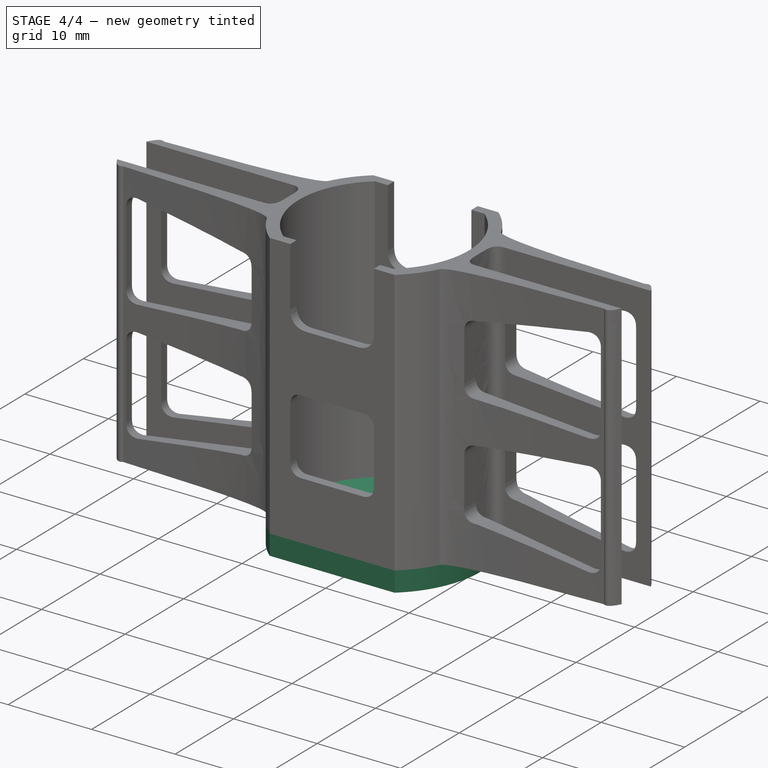
[diagram: stage 4 of 4 — iso view after this stage's code; geometry added in this stage tinted green]
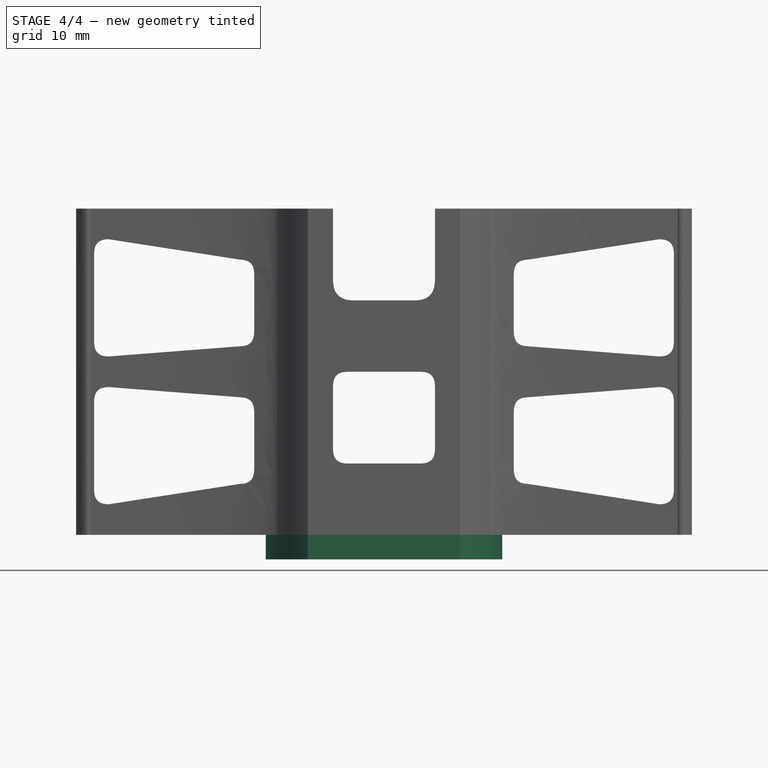
[diagram: stage 4 of 4 — front view after this stage's code; geometry added in this stage tinted green]
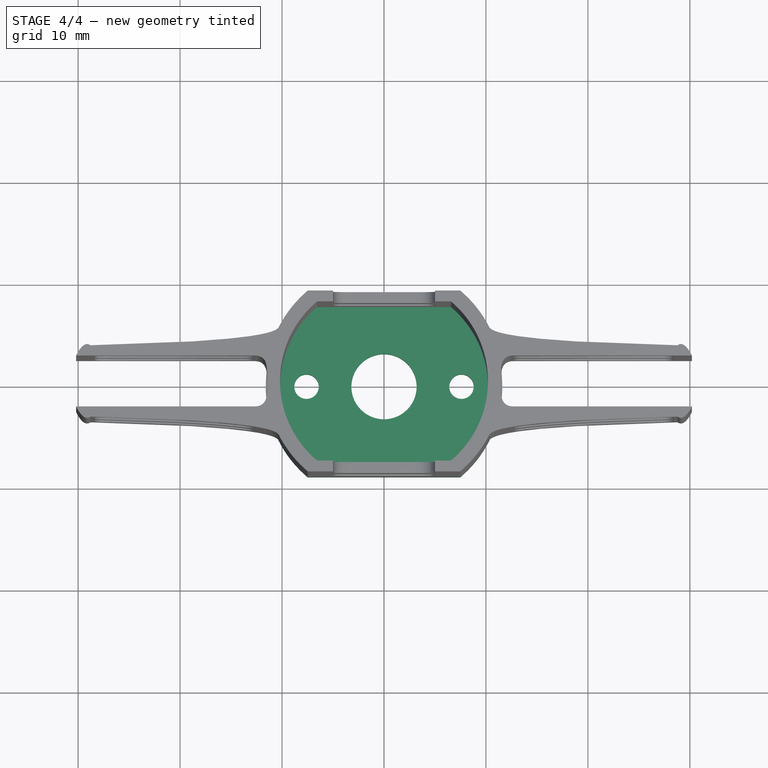
[diagram: stage 4 of 4 — top view after this stage's code; geometry added in this stage tinted green]
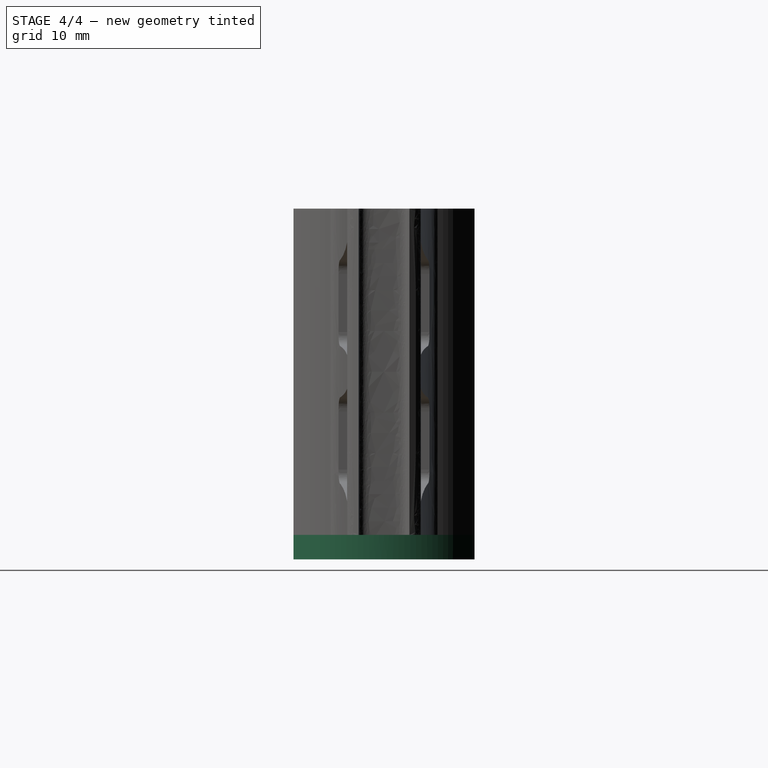
[diagram: stage 4 of 4 — right view after this stage's code; geometry added in this stage tinted green]
FEATURE [Sketcher::SketchObject] Sketch005  label="mainFront"
  FullyConstrained = true
  sketch-geometry (7):
    g0: LineSegment StartX=-7.4748 StartY=8.87059 StartZ=0 EndX=7.4748 EndY=8.87059 EndZ=0
    g1: LineSegment StartX=-7.4748 StartY=-8.87059 StartZ=0 EndX=7.4748 EndY=-8.87059 EndZ=0
    g2: ArcOfCircle CenterX=-3.45031e-07 CenterY=0 CenterZ=0 NormalX=0 NormalY=0 NormalZ=1 AngleXU=0 Radius=11.6 StartAngle=2.27101 EndAngle=4.01218
    g3: ArcOfCircle CenterX=-3.45031e-07 CenterY=0 CenterZ=0 NormalX=0 NormalY=0 NormalZ=1 AngleXU=0 Radius=11.6 StartAngle=5.4126 EndAngle=7.15377
    g4: Circle CenterX=-3.45031e-07 CenterY=0 CenterZ=0 NormalX=0 NormalY=0 NormalZ=1 AngleXU=0 Radius=3.2
    g5: Circle CenterX=-7.6 CenterY=0 CenterZ=0 NormalX=0 NormalY=0 NormalZ=1 AngleXU=0 Radius=1.2
    g6: Circle CenterX=7.6 CenterY=0 CenterZ=0 NormalX=0 NormalY=0 NormalZ=1 AngleXU=0 Radius=1.2
  constraints (12):
    c: Block(g0)
    c: Block(g1)
    c: Coincident(g2,g0)
    c: Coincident(g2,g1)
    c: Coincident(g3,g0)
    c: Coincident(g3,g1)
    c: Block(g3)
    c: Block(g2)
    c: Coincident(g4,g2)
    c: Block(g4)
    c: Block(g6)
    c: Block(g5)
FEATURE [Part::Extrusion] Extrude004  label="mainFront001"
  Base = -> Sketch005
  Dir = (0,0,1)
  DirMode = 2
  FaceMakerClass = Part::FaceMakerBullseye
  LengthFwd = 2.4
  LengthRev = 0
  Placement = pos=(0,0,-2.4) rot=(0,0,1;0rad)
  Solid = true
  Symmetric = false
FEATURE [Part::MultiFuse] Fusion  label="main005"
  Shapes = -> [Cut002,Extrude004]
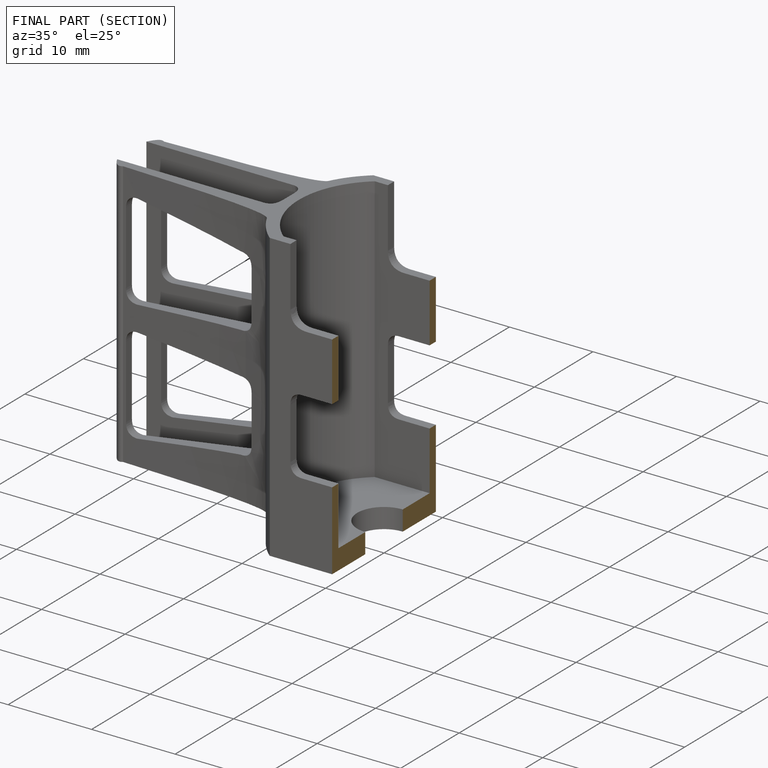
[diagram: finished part — half-section view (interior)]
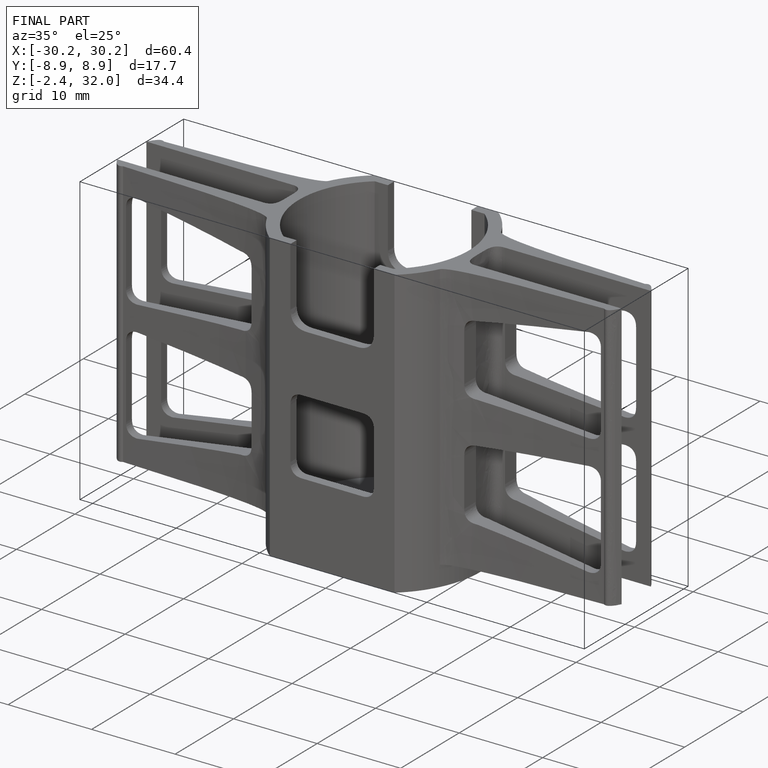
[diagram: finished part — iso view with bounding-box wireframe]
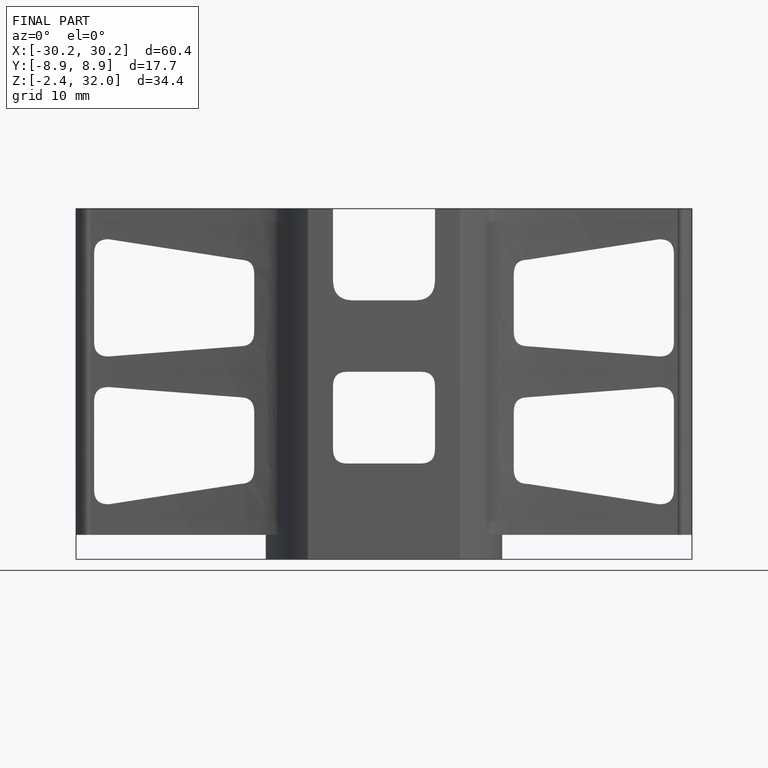
[diagram: finished part — front view with bounding-box wireframe]
